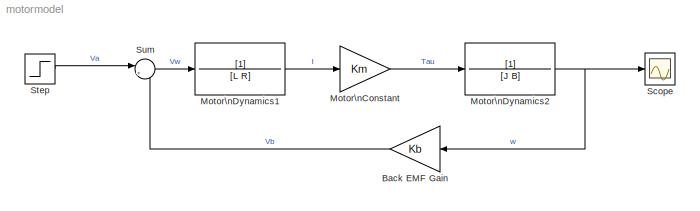
MODEL motormodel
KIND model
CONFIG InitFcn = MotorParam
CONFIG PreLoadFcn = MotorParam
BLOCK [Gain] Back EMF Gain
  Gain = Kb
  SID = 2
BLOCK [Gain] Motor\nConstant
  Gain = Km
  SID = 6
BLOCK [TransferFcn] Motor\nDynamics1
  Denominator = [L R]
  SID = 23
BLOCK [TransferFcn] Motor\nDynamics2
  Denominator = [J B]
  SID = 7
BLOCK [Scope] Scope
  Floating = off
  NumInputPorts = 1
  Ports = [1]
  SID = 24
  ScopeSpecificationString = Simulink.scopes.TimeScopeBlockCfg('CurrentConfiguration', extmgr.ConfigurationSet(extmgr.Configuration('Core','General UI',true),extmgr.Configuration('Core','Source UI',true),extmgr.Configuration('Sources','WiredSimulink',true),extmgr.Configuration('Visuals','Time Domain',true,'SerializedDisplays',{struct('MinYLimReal','-81.15501','MaxYLimReal','730.39513','YLabelReal','','MinYLimMag','0.00000','M...<+1395ch>
BLOCK [Step] Step
  After = 6
  SID = 19
  SampleTime = 0
BLOCK [Sum] Sum
  Inputs = |+-
  Ports = [2, 1]
  SID = 21
LINE Back EMF Gain:1 -> Sum:2
LINE Motor\nConstant:1 -> Motor\nDynamics2:1
LINE Motor\nDynamics1:1 -> Motor\nConstant:1
NET Motor\nDynamics2:1 -> Back EMF Gain:1, Scope:1
LINE Step:1 -> Sum:1
LINE Sum:1 -> Motor\nDynamics1:1
note: NET lines group one-source signal fan-out (src -> all destinations, sorted); 1:1 wires keep LINE
